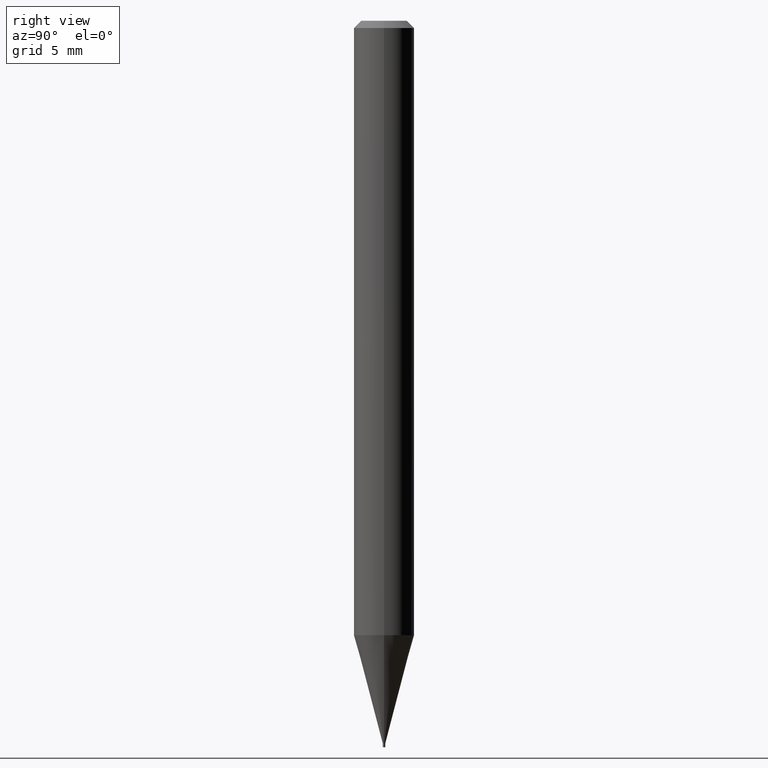
[diagram: clean part render]
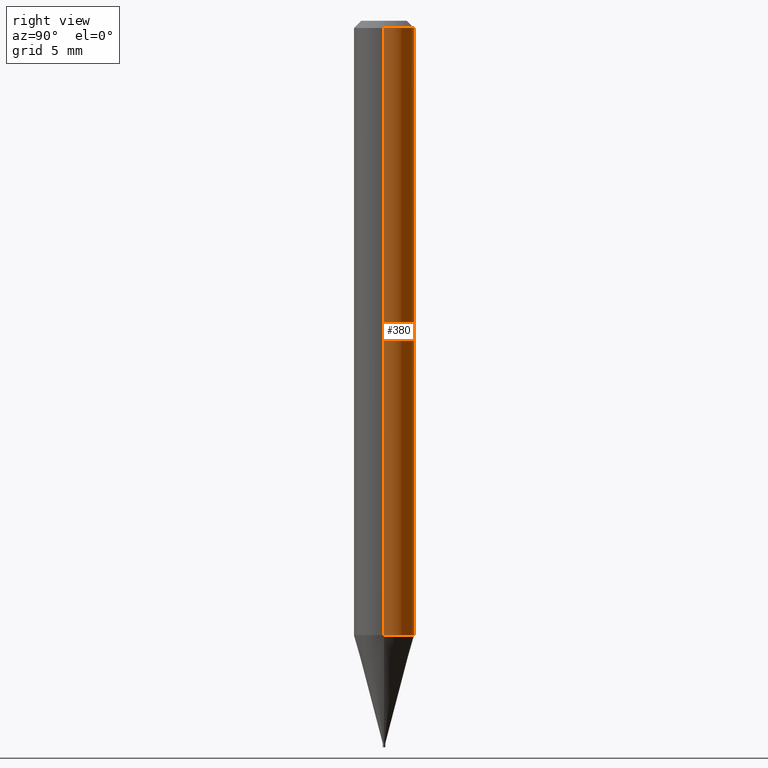
[diagram: same view with one face highlighted and labeled with its STEP entity id]
A machine part, right view. The second image highlights one B-rep face of the part: STEP entity #380.
In plain terms, the highlighted cylindrical surface (edge-blend (fillet) strip) has radius 1.5875 mm, axis along (-0, 0, 1).
Its self-contained STEP definition (entity closure, byte-faithful):
#38 = VECTOR ( 'NONE', #57, 39.37007874015748143 ) ;
#46 = DIRECTION ( 'NONE',  ( -2.445468806185136597E-29, 3.491481338843145583E-15, 1.000000000000000000 ) ) ;
#49 = ORIENTED_EDGE ( 'NONE', *, *, #332, .T. ) ;
#53 = CARTESIAN_POINT ( 'NONE',  ( 3.102265363250856610E-29, -4.429212753208927148E-15, -1.268576951545869136 ) ) ;
#57 = DIRECTION ( 'NONE',  ( -2.445468806185136877E-29, 3.491481338843145188E-15, 1.000000000000000000 ) ) ;
#58 = AXIS2_PLACEMENT_3D ( 'NONE', #53, #46, #265 ) ;
#73 = DIRECTION ( 'NONE',  ( 1.000000000000000000, -6.982962677686266711E-15, 4.876176775795935793E-29 ) ) ;
#76 = EDGE_LOOP ( 'NONE', ( #84, #49, #197, #339 ) ) ;
#79 = EDGE_CURVE ( 'NONE', #305, #300, #351, .T. ) ;
#84 = ORIENTED_EDGE ( 'NONE', *, *, #79, .T. ) ;
#131 = VECTOR ( 'NONE', #329, 39.37007874015748143 ) ;
#146 = CYLINDRICAL_SURFACE ( 'NONE', #399, 0.06250000000000000000 ) ;
#149 = EDGE_CURVE ( 'NONE', #305, #331, #191, .T. ) ;
#159 = CIRCLE ( 'NONE', #165, 0.06250000000000000000 ) ;
#165 = AXIS2_PLACEMENT_3D ( 'NONE', #297, #334, #350 ) ;
#171 = CARTESIAN_POINT ( 'NONE',  ( -0.06250000000000001388, -3.985123543358863743E-15, -1.268576951545869136 ) ) ;
#175 = DIRECTION ( 'NONE',  ( -2.445468806185136597E-29, 3.491481338843145583E-15, 1.000000000000000000 ) ) ;
#186 = CARTESIAN_POINT ( 'NONE',  ( 0.06250000000000000000, -4.364351673553916694E-16, 3.047610484872459871E-30 ) ) ;
#190 = EDGE_CURVE ( 'NONE', #331, #285, #159, .T. ) ;
#191 = LINE ( 'NONE', #186, #131 ) ;
#196 = LINE ( 'NONE', #389, #38 ) ;
#197 = ORIENTED_EDGE ( 'NONE', *, *, #190, .F. ) ;
#228 = CARTESIAN_POINT ( 'NONE',  ( -0.06250000000000000000, -1.796703276795724695E-15, -0.01499999999999999944 ) ) ;
#237 = CARTESIAN_POINT ( 'NONE',  ( 0.06250000000000000000, -4.888073874380388472E-16, -0.01499999999999999944 ) ) ;
#265 = DIRECTION ( 'NONE',  ( 1.000000000000000000, -6.982962677686262766E-15, 0.000000000000000000 ) ) ;
#273 = CARTESIAN_POINT ( 'NONE',  ( 0.06250000000000001388, -4.865647920564318817E-15, -1.268576951545869136 ) ) ;
#285 = VERTEX_POINT ( 'NONE', #228 ) ;
#297 = CARTESIAN_POINT ( 'NONE',  ( 3.668203209277705088E-31, -5.237222008264718399E-17, -0.01499999999999999944 ) ) ;
#300 = VERTEX_POINT ( 'NONE', #171 ) ;
#305 = VERTEX_POINT ( 'NONE', #273 ) ;
#329 = DIRECTION ( 'NONE',  ( -2.445468806185136877E-29, 3.491481338843145188E-15, 1.000000000000000000 ) ) ;
#331 = VERTEX_POINT ( 'NONE', #237 ) ;
#332 = EDGE_CURVE ( 'NONE', #300, #285, #196, .T. ) ;
#334 = DIRECTION ( 'NONE',  ( -2.445468806185136597E-29, 3.491481338843145583E-15, 1.000000000000000000 ) ) ;
#339 = ORIENTED_EDGE ( 'NONE', *, *, #149, .F. ) ;
#350 = DIRECTION ( 'NONE',  ( 1.000000000000000000, -6.982962677686266711E-15, 0.000000000000000000 ) ) ;
#351 = CIRCLE ( 'NONE', #58, 0.06250000000000000000 ) ;
#380 = ADVANCED_FACE ( 'NONE', ( #398 ), #146, .T. ) ;
#389 = CARTESIAN_POINT ( 'NONE',  ( -0.06250000000000000000, 4.440892098500626162E-16, -3.074334431409316114E-30 ) ) ;
#398 = FACE_OUTER_BOUND ( 'NONE', #76, .T. ) ;
#399 = AXIS2_PLACEMENT_3D ( 'NONE', #431, #175, #73 ) ;
#431 = CARTESIAN_POINT ( 'NONE',  ( 0.000000000000000000, 0.000000000000000000, 0.000000000000000000 ) ) ;